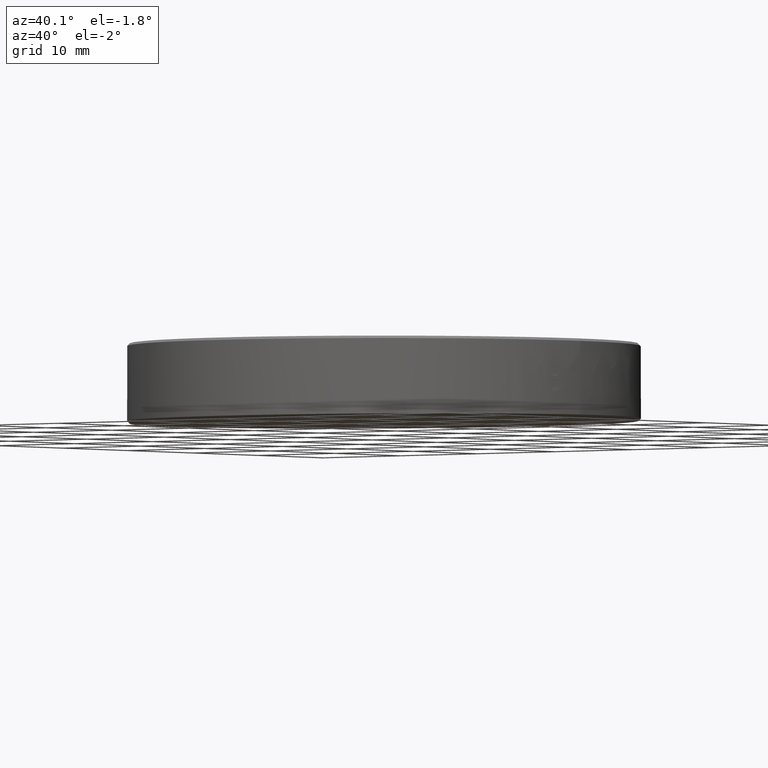
[diagram: clean part render]
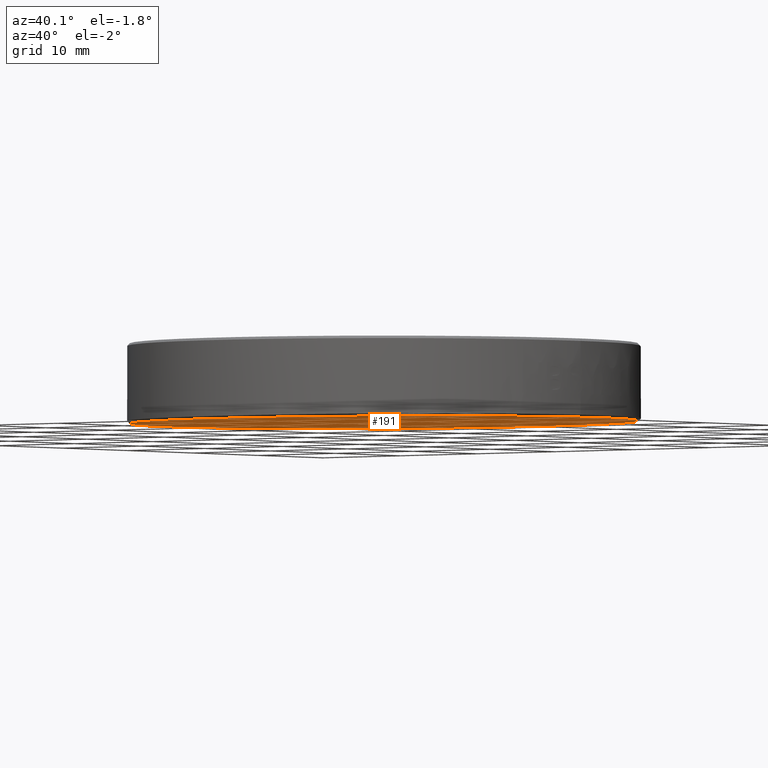
[diagram: same view with one face highlighted and labeled with its STEP entity id]
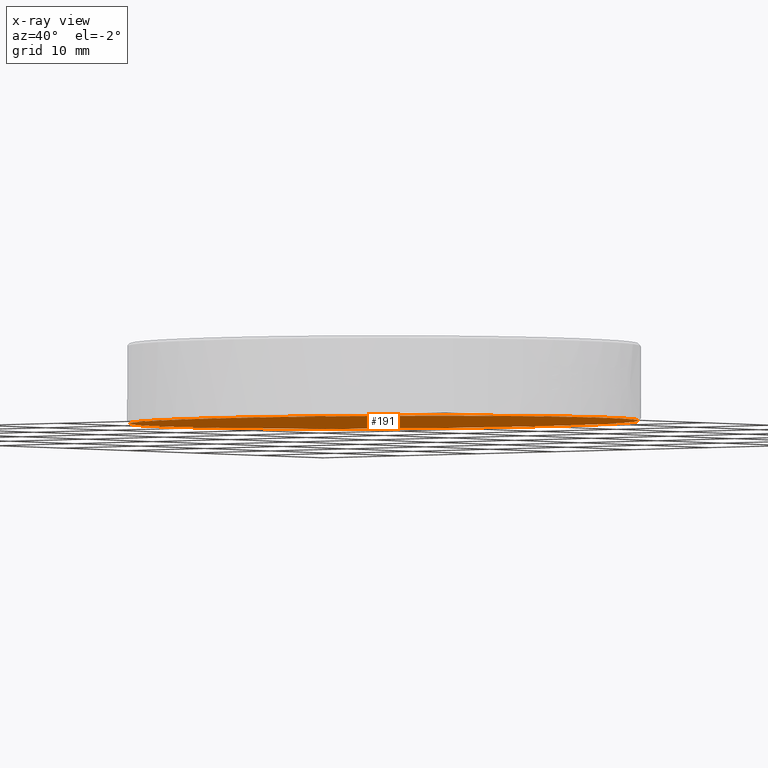
[diagram: x-ray of the same camera — body ghosted, the highlighted face saturated]
A machine part, auxiliary view. The second image highlights one B-rep face of the part: STEP entity #191.
The next image is the same camera in x-ray: the body ghosted, the highlighted face saturated — about 0% of this face is hidden behind the body in this view.
In plain terms, the highlighted planar face has unit normal (0, -0.0087, 1).
Its self-contained STEP definition (entity closure, byte-faithful):
#117 = FACE_OUTER_BOUND ( 'NONE', #181, .T. ) ;
#181 = EDGE_LOOP ( 'NONE', ( #190, #186 ) ) ;
#186 = ORIENTED_EDGE ( 'NONE', *, *, #192, .T. ) ;
#190 = ORIENTED_EDGE ( 'NONE', *, *, #2453, .T. ) ;
#191 = ADVANCED_FACE ( 'NONE', ( #117 ), #2485, .F. ) ;
#192 = EDGE_CURVE ( 'NONE', #2477, #2437, #428, .T. ) ;
#301 = CARTESIAN_POINT ( 'NONE',  ( 2.081668171172168500E-014, -25.15000951923398300, -3.997818366125408800 ) ) ;
#405 = CARTESIAN_POINT ( 'NONE',  ( 3.335091169195864200, -25.15027297678293300, -3.997820665284606900 ) ) ;
#406 = CARTESIAN_POINT ( 'NONE',  ( 6.543528634645732600, -24.51207508494071500, -3.992251196658164000 ) ) ;
#407 = CARTESIAN_POINT ( 'NONE',  ( 12.70709615805350600, -21.95875660247394000, -3.969968723833992000 ) ) ;
#408 = CARTESIAN_POINT ( 'NONE',  ( 15.42734781418514500, -20.14121104058232700, -3.954107244011696200 ) ) ;
#409 = CARTESIAN_POINT ( 'NONE',  ( 20.14316865387306500, -15.42501765620046300, -3.912949647870578300 ) ) ;
#410 = CARTESIAN_POINT ( 'NONE',  ( 21.96153908898470100, -12.70409903297699500, -3.889204550776313300 ) ) ;
#411 = CARTESIAN_POINT ( 'NONE',  ( 24.51358036970538000, -6.542237988446799200, -3.835430804095715500 ) ) ;
#412 = CARTESIAN_POINT ( 'NONE',  ( 25.15228511932646400, -3.332576723356127000, -3.807420514582171100 ) ) ;
#413 = CARTESIAN_POINT ( 'NONE',  ( 25.15202169041695200, 3.336864494631447200, -3.749217182834604600 ) ) ;
#414 = CARTESIAN_POINT ( 'NONE',  ( 24.51382374625544000, 6.546626569631893500, -3.721206013566305900 ) ) ;
#415 = CARTESIAN_POINT ( 'NONE',  ( 21.96129571243463700, 12.70828599434258000, -3.667434026395216800 ) ) ;
#416 = CARTESIAN_POINT ( 'NONE',  ( 20.14335492620832100, 15.42949169983802600, -3.643686423971919100 ) ) ;
#417 = CARTESIAN_POINT ( 'NONE',  ( 15.42716154184986400, 20.14531253949545300, -3.602532078979357800 ) ) ;
#418 = CARTESIAN_POINT ( 'NONE',  ( 12.70624291861985400, 21.96368297461364300, -3.586663400597469600 ) ) ;
#419 = CARTESIAN_POINT ( 'NONE',  ( 6.544381874079451900, 24.51572425535165300, -3.564392073743926700 ) ) ;
#424 = CARTESIAN_POINT ( 'NONE',  ( 3.334720609052331100, 25.15442900494642600, -3.558818181836888300 ) ) ;
#425 = CARTESIAN_POINT ( 'NONE',  ( 2.081668171172168500E-014, 25.15429729050932300, -3.558819331291367400 ) ) ;
#428 = B_SPLINE_CURVE_WITH_KNOTS ( 'NONE', 3,
 ( #425, #424, #419, #418, #417, #416, #415, #414, #413, #412, #411, #410, #409, #408, #407, #406, #405, #301 ),
 .UNSPECIFIED., .F., .F.,
 ( 4, 2, 2, 2, 2, 2, 2, 2, 4 ),
 ( 0.5000000000000000000, 0.5625000000000000000, 0.6250000000000000000, 0.6875000000000000000, 0.7500000000000000000, 0.8125000000000000000, 0.8750000000000000000, 0.9375000000000000000, 1.000000000000000000 ),
 .UNSPECIFIED. ) ;
#805 = CARTESIAN_POINT ( 'NONE',  ( 2.081668171172168500E-014, -25.15000951923398300, -3.997818366125408800 ) ) ;
#1015 = CARTESIAN_POINT ( 'NONE',  ( 2.081668171172168500E-014, 25.15429729050932300, -3.558819331291367400 ) ) ;
#1038 = B_SPLINE_CURVE_WITH_KNOTS ( 'NONE', 3,
 ( #1093, #1092, #1091, #1090, #1089, #1088, #1087, #1086, #1085, #1084, #1083, #1082, #1081, #1080, #1074, #1073, #1072, #1071 ),
 .UNSPECIFIED., .F., .F.,
 ( 4, 2, 2, 2, 2, 2, 2, 2, 4 ),
 ( 0.0000000000000000000, 0.06249999999999998600, 0.1250000000000000000, 0.1875000000000000000, 0.2500000000000000600, 0.3125000000000000600, 0.3750000000000000000, 0.4375000000000000000, 0.5000000000000000000 ),
 .UNSPECIFIED. ) ;
#1071 = CARTESIAN_POINT ( 'NONE',  ( 2.081668171172168500E-014, 25.15429729050932300, -3.558819331291367400 ) ) ;
#1072 = CARTESIAN_POINT ( 'NONE',  ( -3.334720609052276100, 25.15416557607222700, -3.558820480745845200 ) ) ;
#1073 = CARTESIAN_POINT ( 'NONE',  ( -6.544482683933170900, 24.51596763191073700, -3.564389949828873100 ) ) ;
#1074 = CARTESIAN_POINT ( 'NONE',  ( -12.70614210876582800, 21.96343959805462000, -3.586665524512523200 ) ) ;
#1080 = CARTESIAN_POINT ( 'NONE',  ( -15.42734781418633700, 20.14549881185934400, -3.602530453405064400 ) ) ;
#1081 = CARTESIAN_POINT ( 'NONE',  ( -20.14316865387175800, 15.42930542747408800, -3.643688049546213400 ) ) ;
#1082 = CARTESIAN_POINT ( 'NONE',  ( -21.96153908899332300, 12.70838680424068900, -3.667433146640564500 ) ) ;
#1083 = CARTESIAN_POINT ( 'NONE',  ( -24.51358036969659100, 6.546525759733831300, -3.721206893320958600 ) ) ;
#1084 = CARTESIAN_POINT ( 'NONE',  ( -25.15228511932049900, 3.336864494636333900, -3.749217182834562000 ) ) ;
#1085 = CARTESIAN_POINT ( 'NONE',  ( -25.15202169042277800, -3.332576723361088300, -3.807420514582215500 ) ) ;
#1086 = CARTESIAN_POINT ( 'NONE',  ( -24.51382374626125900, -6.542338798344760100, -3.835431683850367300 ) ) ;
#1087 = CARTESIAN_POINT ( 'NONE',  ( -21.96129571242870400, -12.70399822307898300, -3.889203671021661500 ) ) ;
#1088 = CARTESIAN_POINT ( 'NONE',  ( -20.14335492619716600, -15.42520392858705100, -3.912951273445069800 ) ) ;
#1089 = CARTESIAN_POINT ( 'NONE',  ( -15.42716154186100800, -20.14102476819562800, -3.954105618437205200 ) ) ;
#1090 = CARTESIAN_POINT ( 'NONE',  ( -12.70624291854869600, -21.95939520339611000, -3.969974296819811100 ) ) ;
#1091 = CARTESIAN_POINT ( 'NONE',  ( -6.544381874150443100, -24.51143648401851700, -3.992245623672345800 ) ) ;
#1092 = CARTESIAN_POINT ( 'NONE',  ( -3.335674856472071500, -25.14974601557632300, -3.997816066563826700 ) ) ;
#1093 = CARTESIAN_POINT ( 'NONE',  ( 2.081668171172168500E-014, -25.15000951923398300, -3.997818366125408800 ) ) ;
#2437 = VERTEX_POINT ( 'NONE', #805 ) ;
#2453 = EDGE_CURVE ( 'NONE', #2437, #2477, #1038, .T. ) ;
#2477 = VERTEX_POINT ( 'NONE', #1015 ) ;
#2478 = AXIS2_PLACEMENT_3D ( 'NONE', #2479, #2481, #2549 ) ;
#2479 = CARTESIAN_POINT ( 'NONE',  ( -37.50000000000000000, 25.39999999999999900, -3.556675116229812700 ) ) ;
#2481 = DIRECTION ( 'NONE',  ( 0.0000000000000000000, -0.008726535498366869100, 0.9999619230641714200 ) ) ;
#2485 = PLANE ( 'NONE',  #2478 ) ;
#2549 = DIRECTION ( 'NONE',  ( 0.0000000000000000000, -0.9999619230641713100, -0.008726535498366867400 ) ) ;